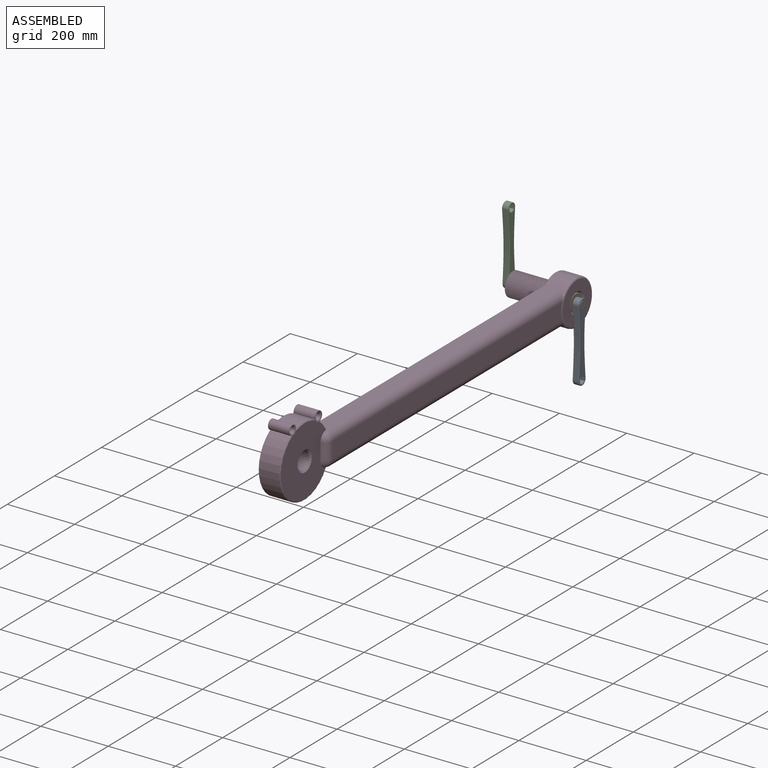
[diagram: assembled view]
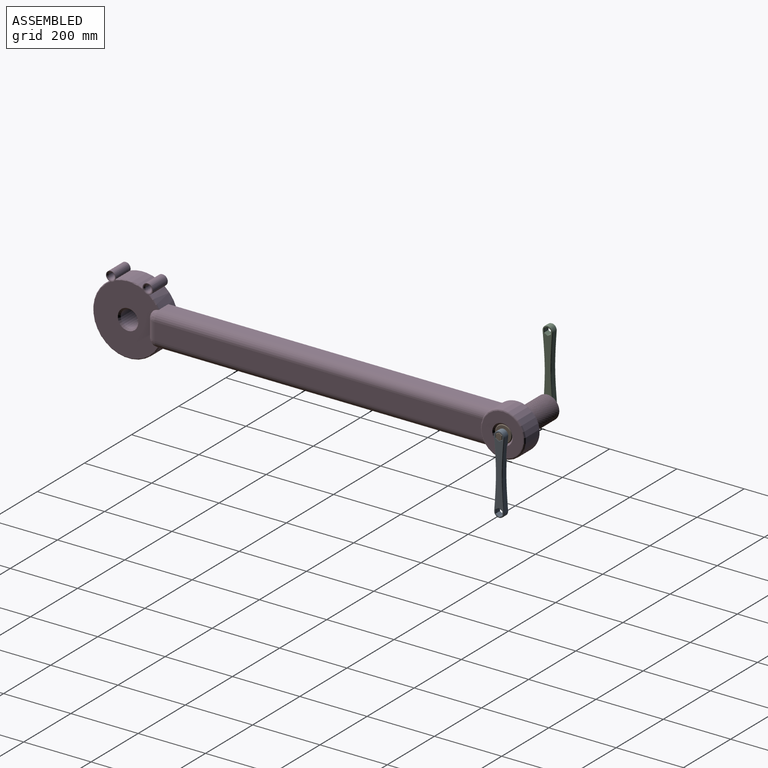
[diagram: assembled view, second angle]
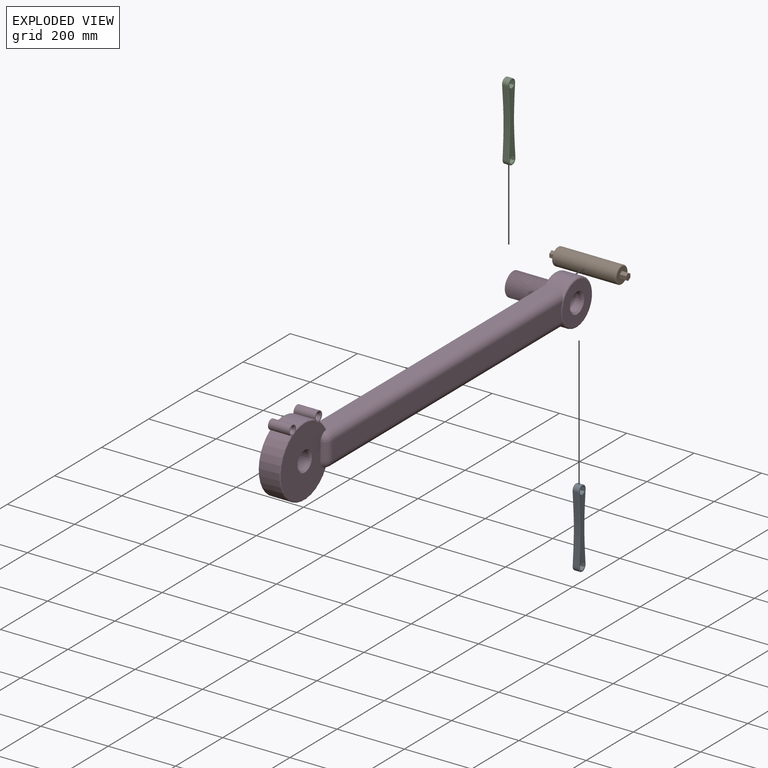
[diagram: exploded view]
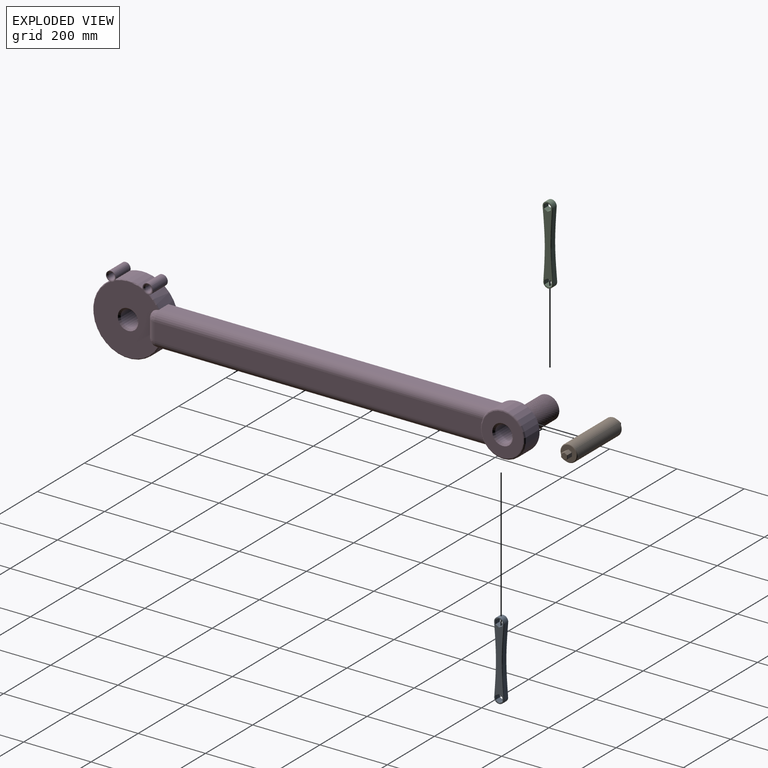
[diagram: exploded view, second angle]
ASSEMBLY  parts=4 mates=3
PART A: 50 faces, bbox 282.8x19.1x35.9 mm
  f0: plane 16.51x9.53mm, normal (0.87,0,0.5), area 181.6mm2, adj f1,f15,f20,f36
  f1: plane 16.51x9.53mm, normal (0.87,0,-0.5), area 181.6mm2, adj f0,f2,f18,f34
  f2: plane 16.51x11mm, normal (0,0,-1), area 181.6mm2, adj f1,f3,f19,f35
  f3: plane 16.51x9.53mm, normal (-0.87,0,-0.5), area 181.6mm2, adj f2,f4,f21,f37
  f4: plane 16.51x9.53mm, normal (-0.87,0,0.5), area 181.6mm2, adj f3,f15,f23,f39
  f5: plane 16.51x9.53mm, normal (0.87,0,0.5), area 181.6mm2, adj f6,f13,f28,f44
  f6: plane 16.51x9.53mm, normal (0.87,0,-0.5), area 181.6mm2, adj f5,f7,f26,f42
  f7: plane 16.51x11mm, normal (0,0,-1), area 181.6mm2, adj f6,f8,f24,f40
  f8: plane 16.51x9.53mm, normal (-0.87,0,-0.5), area 181.6mm2, adj f7,f9,f25,f41
  f9: plane 16.51x9.53mm, normal (-0.87,0,0.5), area 181.6mm2, adj f8,f13,f27,f43
  f10: cylinder r=14.67mm len=29.34mm, axis (0,1,0), area 760.8mm2, adj f11,f14,f32,f48
  f11: extruded ~203.05x16.51mm, area 3357.9mm2, adj f10,f12,f30,f46
  f12: cylinder r=14.97mm len=29.94mm, axis (0,1,0), area 781.2mm2, adj f11,f14,f31,f47
  f13: plane 16.51x11mm, normal (0,0,1), area 181.6mm2, adj f5,f9,f29,f45
  f14: extruded ~203.05x16.51mm, area 3357.9mm2, adj f10,f12,f33,f49
  f15: plane 16.51x11mm, normal (0,0,1), area 181.6mm2, adj f0,f4,f22,f38
  f16: plane 230.3x27.45mm, normal (0,-1,0), area 3933mm2, adj f18,f19,f20,f21,f22,f23,f24,f25
  f17: plane 230.3x27.45mm, normal (0,1,0), area 3933.1mm2, adj f34,f35,f36,f37,f38,f39,f40,f41
  f18: cylinder r=1.27mm len=11.43mm, axis (-0.5,0,-0.87), area 23.4mm2, adj f1,f16,f19,f20
  f19: cylinder r=1.27mm len=12.47mm, axis (-1,0,0), area 23.4mm2, adj f2,f16,f18,f21
  f20: cylinder r=1.27mm len=11.43mm, axis (0.5,0,-0.87), area 23.4mm2, adj f0,f16,f18,f22
  f21: cylinder r=1.27mm len=11.43mm, axis (-0.5,0,0.87), area 23.4mm2, adj f3,f16,f19,f23
  f22: cylinder r=1.27mm len=12.47mm, axis (1,0,0), area 23.4mm2, adj f15,f16,f20,f23
  f23: cylinder r=1.27mm len=11.43mm, axis (0.5,0,0.87), area 23.4mm2, adj f4,f16,f21,f22
  f24: cylinder r=1.27mm len=12.47mm, axis (-1,0,0), area 23.4mm2, adj f7,f16,f25,f26
  f25: cylinder r=1.27mm len=11.43mm, axis (-0.5,0,0.87), area 23.4mm2, adj f8,f16,f24,f27
  f26: cylinder r=1.27mm len=11.43mm, axis (-0.5,0,-0.87), area 23.4mm2, adj f6,f16,f24,f28
  f27: cylinder r=1.27mm len=11.43mm, axis (0.5,0,0.87), area 23.4mm2, adj f9,f16,f25,f29
  f28: cylinder r=1.27mm len=11.43mm, axis (0.5,0,-0.87), area 23.4mm2, adj f5,f16,f26,f29
  f29: cylinder r=1.27mm len=12.47mm, axis (1,0,0), area 23.4mm2, adj f13,f16,f27,f28
  f30: bspline ~243.98x9.06mm, area 405.8mm2, adj f11,f16,f31,f32
  f31: torus R=13.7mm, axis (0,-1,0), area 91.4mm2, adj f12,f16,f30,f33
  f32: torus R=13.4mm, axis (0,-1,0), area 88.9mm2, adj f10,f16,f30,f33
  f33: bspline ~254.14x9.92mm, area 405.8mm2, adj f14,f16,f31,f32
  f34: cylinder r=1.27mm len=11.43mm, axis (0.5,0,0.87), area 23.4mm2, adj f1,f17,f35,f36
  f35: cylinder r=1.27mm len=12.47mm, axis (1,0,0), area 23.4mm2, adj f2,f17,f34,f37
  f36: cylinder r=1.27mm len=11.43mm, axis (-0.5,0,0.87), area 23.4mm2, adj f0,f17,f34,f38
  f37: cylinder r=1.27mm len=11.43mm, axis (0.5,0,-0.87), area 23.4mm2, adj f3,f17,f35,f39
  f38: cylinder r=1.27mm len=12.47mm, axis (-1,0,0), area 23.4mm2, adj f15,f17,f36,f39
  f39: cylinder r=1.27mm len=11.43mm, axis (-0.5,0,-0.87), area 23.4mm2, adj f4,f17,f37,f38
  f40: cylinder r=1.27mm len=12.47mm, axis (1,0,0), area 23.4mm2, adj f7,f17,f41,f42
  f41: cylinder r=1.27mm len=11.43mm, axis (0.5,0,-0.87), area 23.4mm2, adj f8,f17,f40,f43
  f42: cylinder r=1.27mm len=11.43mm, axis (0.5,0,0.87), area 23.4mm2, adj f6,f17,f40,f44
  f43: cylinder r=1.27mm len=11.43mm, axis (-0.5,0,-0.87), area 23.4mm2, adj f9,f17,f41,f45
  f44: cylinder r=1.27mm len=11.43mm, axis (-0.5,0,0.87), area 23.4mm2, adj f5,f17,f42,f45
  f45: cylinder r=1.27mm len=12.47mm, axis (-1,0,0), area 23.4mm2, adj f13,f17,f43,f44
  f46: bspline ~243.98x9.48mm, area 405.8mm2, adj f11,f17,f47,f48
  f47: torus R=13.7mm, axis (0,-1,0), area 91.4mm2, adj f12,f17,f46,f49
  f48: torus R=13.4mm, axis (0,-1,0), area 88.9mm2, adj f10,f17,f46,f49
  f49: bspline ~254.17x9.29mm, area 405.8mm2, adj f14,f17,f47,f48
PART B: 31 faces, bbox 228.6x55x55 mm
  f0: plane 45.72x45.72mm, normal (1,0,0), area 1327.4mm2, adj f10,f11,f12,f13,f14,f15,f17
  f1: cylinder r=25.4mm len=185.42mm, axis (-1,0,0), area 29591.7mm2, adj f17,f18
  f2: plane 45.72x45.72mm, normal (-1,0,0), area 1327.4mm2, adj f3,f4,f5,f6,f7,f8,f18
  f3: plane 17.78x9.53mm, normal (0,0.87,0.5), area 195.6mm2, adj f2,f4,f8,f26
  f4: plane 17.78x9.53mm, normal (0,0.87,-0.5), area 195.6mm2, adj f2,f3,f5,f25
  f5: plane 17.78x11mm, normal (0,0,-1), area 195.6mm2, adj f2,f4,f6,f27
  f6: plane 17.78x9.53mm, normal (0,-0.87,-0.5), area 195.6mm2, adj f2,f5,f7,f29
  f7: plane 17.78x9.53mm, normal (0,-0.87,0.5), area 195.6mm2, adj f2,f6,f8,f30
  f8: plane 17.78x11mm, normal (0,0,1), area 195.6mm2, adj f2,f3,f7,f28
  f9: plane 19.06x16.51mm, normal (-1,0,0), area 236.1mm2, adj f25,f26,f27,f28,f29,f30
  f10: plane 17.78x11mm, normal (0,0.01,1), area 195.6mm2, adj f0,f11,f15,f20
  f11: plane 17.78x9.48mm, normal (0,-0.86,0.51), area 195.6mm2, adj f0,f10,f12,f19
  f12: plane 17.78x9.57mm, normal (0,-0.87,-0.49), area 195.6mm2, adj f0,f11,f13,f21
  f13: plane 17.78x11mm, normal (0,-0.01,-1), area 195.6mm2, adj f0,f12,f14,f23
  f14: plane 17.78x9.48mm, normal (0,0.86,-0.51), area 195.6mm2, adj f0,f13,f15,f24
  f15: plane 17.78x9.57mm, normal (0,0.87,0.49), area 195.6mm2, adj f0,f10,f14,f22
  f16: plane 19.06x16.59mm, normal (1,0,0), area 236.1mm2, adj f19,f20,f21,f22,f23,f24
  f17: torus R=22.86mm, axis (1,0,0), area 613.6mm2, adj f0,f1
  f18: torus R=22.86mm, axis (1,0,0), area 613.6mm2, adj f1,f2
  f19: cylinder r=1.27mm len=10.12mm, axis (0,0.51,0.86), area 20.9mm2, adj f11,f16,f20,f21
  f20: cylinder r=1.27mm len=11.01mm, axis (0,1,-0.01), area 20.9mm2, adj f10,f16,f19,f22
  f21: cylinder r=1.27mm len=10.2mm, axis (0,-0.49,0.87), area 20.9mm2, adj f12,f16,f19,f23
  f22: cylinder r=1.27mm len=10.2mm, axis (0,0.49,-0.87), area 20.9mm2, adj f15,f16,f20,f24
  f23: cylinder r=1.27mm len=11.01mm, axis (0,-1,0.01), area 20.9mm2, adj f13,f16,f21,f24
  f24: cylinder r=1.27mm len=10.12mm, axis (0,-0.51,-0.86), area 20.9mm2, adj f14,f16,f22,f23
  f25: cylinder r=1.27mm len=10.16mm, axis (0,0.5,0.87), area 20.9mm2, adj f4,f9,f26,f27
  f26: cylinder r=1.27mm len=10.16mm, axis (0,-0.5,0.87), area 20.9mm2, adj f3,f9,f25,f28
  f27: cylinder r=1.27mm len=11mm, axis (0,1,0), area 20.9mm2, adj f5,f9,f25,f29
  f28: cylinder r=1.27mm len=11mm, axis (0,-1,0), area 20.9mm2, adj f8,f9,f26,f30
  f29: cylinder r=1.27mm len=10.16mm, axis (0,0.5,-0.87), area 20.9mm2, adj f6,f9,f27,f30
  f30: cylinder r=1.27mm len=10.16mm, axis (0,-0.5,-0.87), area 20.9mm2, adj f7,f9,f28,f29
PART C: same geometry as A
PART D: 43 faces, bbox 192.6x1312.4x235.6 mm
  f0: cylinder r=14.4mm len=63.5mm, axis (-1,0,0), area 4330.8mm2, adj f2,f3,f32,f38,f39,f42
  f1: cylinder r=15.39mm len=63.5mm, axis (-1,0,0), area 4405.4mm2, adj f2,f3,f31,f32,f38,f40
  f2: cylinder r=104.77mm len=80.58mm, axis (1,0,0), area 5044.2mm2, adj f0,f1,f32,f38
  f3: cylinder r=104.77mm len=209.54mm, axis (1,0,0), area 28012.2mm2, adj f0,f1,f5,f6,f12,f15,f16,f20
  f4: plane 123.4x96.78mm, normal (-1,0,0), area 4634.8mm2, adj f7,f22,f23,f24,f25,f27,f29,f30
  f5: plane 991.64x32.13mm, normal (0,0,1), area 31862.4mm2, adj f3,f9,f16,f20
  f6: plane 991.79x32.13mm, normal (0,0,-1), area 31867.1mm2, adj f3,f9,f15,f21
  f7: cylinder r=34.92mm len=127.21mm, axis (1,0,0), area 15176.6mm2, adj f4,f11,f12,f24,f25,f26,f27,f28
  f8: cylinder r=25.4mm len=186.18mm, axis (1,0,0), area 29713.3mm2, adj f11,f37
  f9: cylinder r=66.78mm len=133.56mm, axis (-1,0,0), area 16987.5mm2, adj f5,f6,f14,f15,f16,f22,f23,f30
  f10: plane 123.4x123.4mm, normal (1,0,0), area 9041.5mm2, adj f14,f37
  f11: plane 68.52x68.52mm, normal (-1,0,0), area 1649.5mm2, adj f7,f8,f26,f28
  f12: plane 1030.79x91.44mm, normal (-1,0,0), area 91806.2mm2, adj f3,f7,f20,f21,f24,f25
  f13: plane 975.36x50.8mm, normal (1,0,0), area 49371.6mm2, adj f14,f15,f16,f18
  f14: torus R=61.7mm, axis (1,0,0), area 2965.9mm2, adj f9,f10,f13,f15,f16
  f15: cylinder r=25.4mm len=992.14mm, axis (0,-1,0), area 39277.8mm2, adj f3,f6,f9,f13,f14,f19,f39
  f16: cylinder r=25.4mm len=992.04mm, axis (0,1,0), area 39274.7mm2, adj f3,f5,f9,f13,f14,f17,f40
  f17: sphere r=25.4mm, area 744mm2, adj f16,f18,f31,f40
  f18: cylinder r=25.4mm len=50.8mm, axis (0,0,-1), area 1678.5mm2, adj f13,f17,f19,f31
  f19: sphere r=25.4mm, area 744mm2, adj f15,f18,f31,f39
  f20: cylinder r=5.08mm len=1033.38mm, axis (0,-1,0), area 8238.2mm2, adj f3,f5,f12,f23,f25
  f21: cylinder r=5.08mm len=1033.43mm, axis (0,1,0), area 8238.5mm2, adj f3,f6,f12,f22,f24
  f22: plane 41.64x6.31mm, normal (0,0,1), area 253.9mm2, adj f4,f9,f21,f24,f30
  f23: plane 41.74x6.31mm, normal (0,0,-1), area 254.5mm2, adj f4,f9,f20,f25,f30
  f24: plane 15.96x6.31mm, normal (0,-1,0), area 25.1mm2, adj f4,f7,f12,f21,f22,f28,f29
  f25: plane 15.87x6.31mm, normal (0,-1,0), area 25mm2, adj f4,f7,f12,f20,f23
  f26: bspline ~127.2x80.65mm, area 21611.7mm2, adj f7,f11,f27,f28
  f27: plane 2.08x1.57mm, normal (0,-0.87,-0.5), area 1.9mm2, adj f4,f7,f26,f28,f29
  f28: bspline ~128.05x80.65mm, area 21850.1mm2, adj f7,f11,f24,f26,f27,f29
  f29: cylinder r=34.96mm len=17.68mm, axis (1,0,0), area 10.9mm2, adj f4,f24,f27,f28
  f30: torus R=61.7mm, axis (1,0,0), area 2324.1mm2, adj f4,f9,f22,f23
  f31: plane 215.37x191.53mm, normal (1,0,0), area 27056.5mm2, adj f1,f17,f18,f19,f36,f38,f39,f40
  f32: plane 221.67x209.54mm, normal (-1,0,0), area 33114.3mm2, adj f0,f1,f2,f3,f33,f34,f35
  f33: cylinder r=9.53mm len=58.42mm, axis (1,0,0), area 3496.3mm2, adj f32,f42
  f34: cylinder r=9.53mm len=58.42mm, axis (1,0,0), area 3496.3mm2, adj f32,f41
  f35: cylinder r=25.4mm len=58.42mm, axis (1,0,0), area 9323.4mm2, adj f32,f36
  f36: cone r=25.4mm half-angle=45deg, axis (1,0,0), area 1261.2mm2, adj f31,f35
  f37: cone r=25.4mm half-angle=45deg, axis (1,0,0), area 1261.2mm2, adj f8,f10
  f38: torus R=102.23mm, axis (1,0,0), area 333.6mm2, adj f0,f1,f2,f31,f42
  f39: torus R=102.23mm, axis (1,0,0), area 1515.5mm2, adj f0,f3,f15,f19,f31,f42
  f40: torus R=102.23mm, axis (1,0,0), area 175mm2, adj f1,f3,f16,f17,f31
  f41: torus R=14.61mm, axis (1,0,0), area 570.1mm2, adj f31,f34
  f42: torus R=14.61mm, axis (1,0,0), area 554.2mm2, adj f0,f31,f33,f38,f39
PLACE A rot(axis=(0.58,0.58,-0.58),120deg) t=(-5.29,662.66,334.06)mm
PLACE B rot(axis=(0,-0.71,0.71),180deg) t=(-23.7,647.99,537.26)mm
PLACE C rot(axis=(0.58,0.58,-0.57),120.3deg) t=(-213.57,662.66,537.39)mm
PLACE D t=(-41.1,69.76,537.26)mm
MATE fastened A.f6 <-> B.f7  axis (0,0.5,-0.87) through (-14.81,643.23,545.51)mm
MATE revolute B.f1 <-> D.f7  axis (1,0,0) through (-118.95,647.99,537.26)mm
MATE fastened B.f11 <-> C.f1  axis (0,-0.51,0.86) through (-223.09,643.16,545.47)mm
